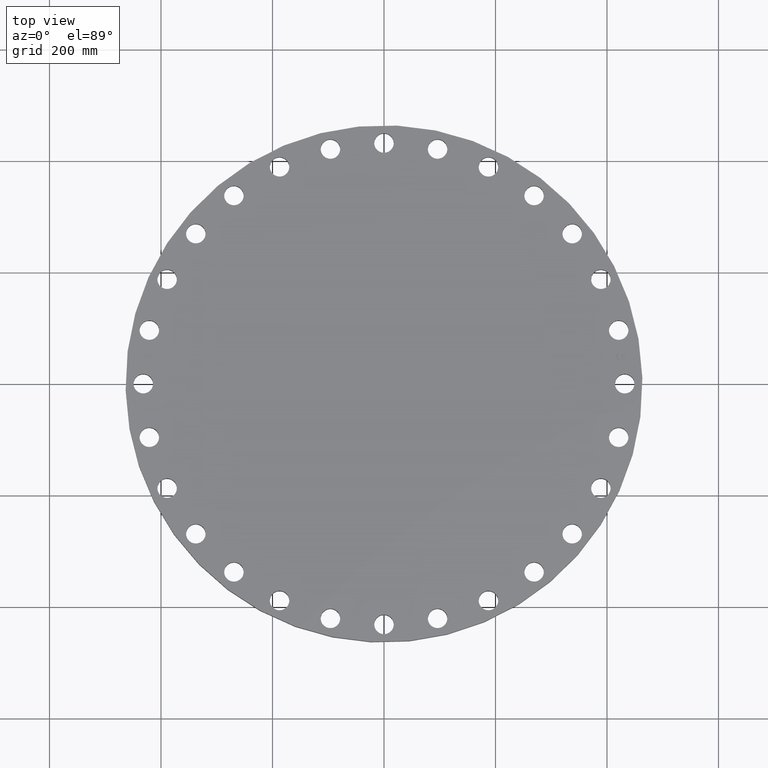
[diagram: clean part render]
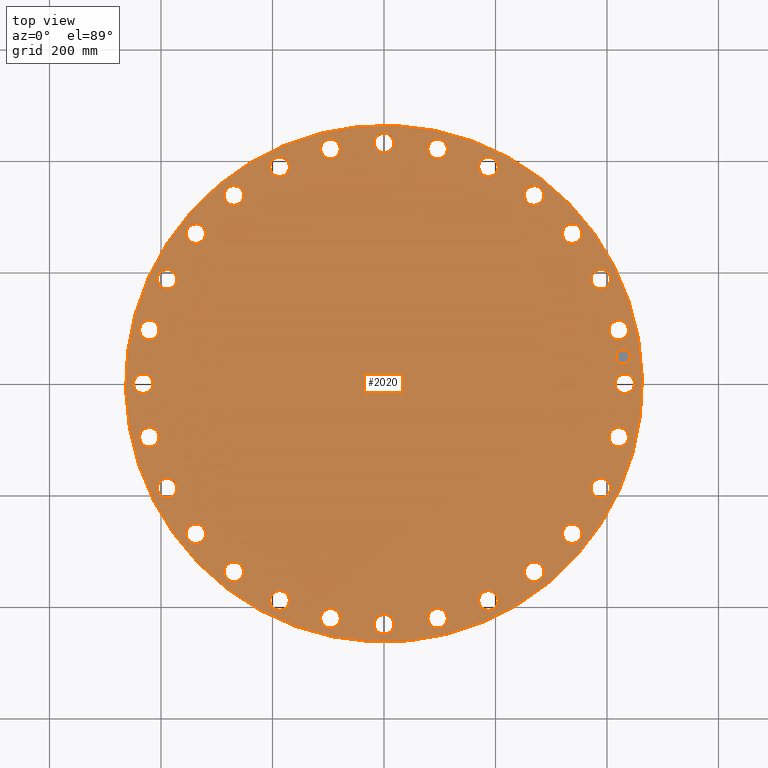
[diagram: same view with one face highlighted and labeled with its STEP entity id]
A machine part, top view. The second image highlights one B-rep face of the part: STEP entity #2020.
In plain terms, the highlighted planar face has unit normal (0, 0, -1).
Its self-contained STEP definition (entity closure, byte-faithful):
#65=AXIS2_PLACEMENT_3D('Circle Axis2P3D',#63,#64,$) ;
#82=AXIS2_PLACEMENT_3D('Circle Axis2P3D',#80,#81,$) ;
#115=AXIS2_PLACEMENT_3D('Circle Axis2P3D',#113,#114,$) ;
#139=AXIS2_PLACEMENT_3D('Circle Axis2P3D',#137,#138,$) ;
#741=AXIS2_PLACEMENT_3D('Circle Axis2P3D',#739,#740,$) ;
#753=AXIS2_PLACEMENT_3D('Circle Axis2P3D',#751,#752,$) ;
#784=AXIS2_PLACEMENT_3D('Circle Axis2P3D',#782,#783,$) ;
#796=AXIS2_PLACEMENT_3D('Circle Axis2P3D',#794,#795,$) ;
#827=AXIS2_PLACEMENT_3D('Circle Axis2P3D',#825,#826,$) ;
#839=AXIS2_PLACEMENT_3D('Circle Axis2P3D',#837,#838,$) ;
#870=AXIS2_PLACEMENT_3D('Circle Axis2P3D',#868,#869,$) ;
#882=AXIS2_PLACEMENT_3D('Circle Axis2P3D',#880,#881,$) ;
#913=AXIS2_PLACEMENT_3D('Circle Axis2P3D',#911,#912,$) ;
#925=AXIS2_PLACEMENT_3D('Circle Axis2P3D',#923,#924,$) ;
#956=AXIS2_PLACEMENT_3D('Circle Axis2P3D',#954,#955,$) ;
#968=AXIS2_PLACEMENT_3D('Circle Axis2P3D',#966,#967,$) ;
#999=AXIS2_PLACEMENT_3D('Circle Axis2P3D',#997,#998,$) ;
#1011=AXIS2_PLACEMENT_3D('Circle Axis2P3D',#1009,#1010,$) ;
#1042=AXIS2_PLACEMENT_3D('Circle Axis2P3D',#1040,#1041,$) ;
#1054=AXIS2_PLACEMENT_3D('Circle Axis2P3D',#1052,#1053,$) ;
#1085=AXIS2_PLACEMENT_3D('Circle Axis2P3D',#1083,#1084,$) ;
#1097=AXIS2_PLACEMENT_3D('Circle Axis2P3D',#1095,#1096,$) ;
#1128=AXIS2_PLACEMENT_3D('Circle Axis2P3D',#1126,#1127,$) ;
#1140=AXIS2_PLACEMENT_3D('Circle Axis2P3D',#1138,#1139,$) ;
#1171=AXIS2_PLACEMENT_3D('Circle Axis2P3D',#1169,#1170,$) ;
#1183=AXIS2_PLACEMENT_3D('Circle Axis2P3D',#1181,#1182,$) ;
#1214=AXIS2_PLACEMENT_3D('Circle Axis2P3D',#1212,#1213,$) ;
#1226=AXIS2_PLACEMENT_3D('Circle Axis2P3D',#1224,#1225,$) ;
#1257=AXIS2_PLACEMENT_3D('Circle Axis2P3D',#1255,#1256,$) ;
#1269=AXIS2_PLACEMENT_3D('Circle Axis2P3D',#1267,#1268,$) ;
#1300=AXIS2_PLACEMENT_3D('Circle Axis2P3D',#1298,#1299,$) ;
#1312=AXIS2_PLACEMENT_3D('Circle Axis2P3D',#1310,#1311,$) ;
#1343=AXIS2_PLACEMENT_3D('Circle Axis2P3D',#1341,#1342,$) ;
#1355=AXIS2_PLACEMENT_3D('Circle Axis2P3D',#1353,#1354,$) ;
#1386=AXIS2_PLACEMENT_3D('Circle Axis2P3D',#1384,#1385,$) ;
#1398=AXIS2_PLACEMENT_3D('Circle Axis2P3D',#1396,#1397,$) ;
#1429=AXIS2_PLACEMENT_3D('Circle Axis2P3D',#1427,#1428,$) ;
#1441=AXIS2_PLACEMENT_3D('Circle Axis2P3D',#1439,#1440,$) ;
#1472=AXIS2_PLACEMENT_3D('Circle Axis2P3D',#1470,#1471,$) ;
#1484=AXIS2_PLACEMENT_3D('Circle Axis2P3D',#1482,#1483,$) ;
#1515=AXIS2_PLACEMENT_3D('Circle Axis2P3D',#1513,#1514,$) ;
#1527=AXIS2_PLACEMENT_3D('Circle Axis2P3D',#1525,#1526,$) ;
#1558=AXIS2_PLACEMENT_3D('Circle Axis2P3D',#1556,#1557,$) ;
#1570=AXIS2_PLACEMENT_3D('Circle Axis2P3D',#1568,#1569,$) ;
#1601=AXIS2_PLACEMENT_3D('Circle Axis2P3D',#1599,#1600,$) ;
#1613=AXIS2_PLACEMENT_3D('Circle Axis2P3D',#1611,#1612,$) ;
#1644=AXIS2_PLACEMENT_3D('Circle Axis2P3D',#1642,#1643,$) ;
#1656=AXIS2_PLACEMENT_3D('Circle Axis2P3D',#1654,#1655,$) ;
#1687=AXIS2_PLACEMENT_3D('Circle Axis2P3D',#1685,#1686,$) ;
#1699=AXIS2_PLACEMENT_3D('Circle Axis2P3D',#1697,#1698,$) ;
#1730=AXIS2_PLACEMENT_3D('Circle Axis2P3D',#1728,#1729,$) ;
#1742=AXIS2_PLACEMENT_3D('Circle Axis2P3D',#1740,#1741,$) ;
#1773=AXIS2_PLACEMENT_3D('Circle Axis2P3D',#1771,#1772,$) ;
#1785=AXIS2_PLACEMENT_3D('Circle Axis2P3D',#1783,#1784,$) ;
#1816=AXIS2_PLACEMENT_3D('Circle Axis2P3D',#1814,#1815,$) ;
#1828=AXIS2_PLACEMENT_3D('Circle Axis2P3D',#1826,#1827,$) ;
#1859=AXIS2_PLACEMENT_3D('Circle Axis2P3D',#1857,#1858,$) ;
#1871=AXIS2_PLACEMENT_3D('Circle Axis2P3D',#1869,#1870,$) ;
#1884=AXIS2_PLACEMENT_3D('Plane Axis2P3D',#1881,#1882,#1883) ;
#2004=AXIS2_PLACEMENT_3D('Circle Axis2P3D',#2002,#2003,$) ;
#2013=AXIS2_PLACEMENT_3D('Circle Axis2P3D',#2011,#2012,$) ;
#46=CARTESIAN_POINT('Vertex',(16.3944680324,0.330803621638,2.75000000001)) ;
#60=CARTESIAN_POINT('Vertex',(17.6055319678,-0.330803621638,2.75000000001)) ;
#63=CARTESIAN_POINT('Axis2P3D Location',(17.0000000001,0.,2.75000000001)) ;
#80=CARTESIAN_POINT('Axis2P3D Location',(17.0000000001,0.,2.75000000001)) ;
#110=CARTESIAN_POINT('Vertex',(-8.74951607956,-16.0158817546,2.75000000001)) ;
#113=CARTESIAN_POINT('Axis2P3D Location',(0.,0.,2.75000000001)) ;
#117=CARTESIAN_POINT('Vertex',(8.74951607956,16.0158817546,2.75000000001)) ;
#137=CARTESIAN_POINT('Axis2P3D Location',(0.,0.,2.75000000001)) ;
#729=CARTESIAN_POINT('Vertex',(-16.057035221,3.32560265409,2.75000000001)) ;
#736=CARTESIAN_POINT('Vertex',(-17.0905137933,4.24010910045,2.75000000001)) ;
#739=CARTESIAN_POINT('Axis2P3D Location',(-16.5737745072,3.78285587727,2.75000000001)) ;
#751=CARTESIAN_POINT('Axis2P3D Location',(-16.5737745072,3.78285587727,2.75000000001)) ;
#772=CARTESIAN_POINT('Vertex',(14.9144356152,-6.81524932624,2.75000000001)) ;
#779=CARTESIAN_POINT('Vertex',(15.7185058936,-7.93679780382,2.75000000001)) ;
#782=CARTESIAN_POINT('Axis2P3D Location',(15.3164707544,-7.37602356503,2.75000000001)) ;
#794=CARTESIAN_POINT('Axis2P3D Location',(15.3164707544,-7.37602356503,2.75000000001)) ;
#815=CARTESIAN_POINT('Vertex',(-14.9144356152,6.81524932624,2.75000000001)) ;
#822=CARTESIAN_POINT('Vertex',(-15.7185058936,7.93679780382,2.75000000001)) ;
#825=CARTESIAN_POINT('Axis2P3D Location',(-15.3164707544,7.37602356503,2.75000000001)) ;
#837=CARTESIAN_POINT('Axis2P3D Location',(-15.3164707544,7.37602356503,2.75000000001)) ;
#858=CARTESIAN_POINT('Vertex',(13.0239639305,-9.96315093917,2.75000000001)) ;
#865=CARTESIAN_POINT('Vertex',(13.5583064735,-11.2355023241,2.75000000001)) ;
#868=CARTESIAN_POINT('Axis2P3D Location',(13.291135202,-10.5993266316,2.75000000001)) ;
#880=CARTESIAN_POINT('Axis2P3D Location',(13.291135202,-10.5993266316,2.75000000001)) ;
#901=CARTESIAN_POINT('Vertex',(-13.0239639305,9.96315093917,2.75000000001)) ;
#908=CARTESIAN_POINT('Vertex',(-13.5583064735,11.2355023241,2.75000000001)) ;
#911=CARTESIAN_POINT('Axis2P3D Location',(-13.291135202,10.5993266316,2.75000000001)) ;
#923=CARTESIAN_POINT('Axis2P3D Location',(-13.291135202,10.5993266316,2.75000000001)) ;
#944=CARTESIAN_POINT('Vertex',(10.480416311,-12.6114585615,2.75000000001)) ;
#951=CARTESIAN_POINT('Vertex',(10.7182369523,-13.9708118425,2.75000000001)) ;
#954=CARTESIAN_POINT('Axis2P3D Location',(10.5993266316,-13.291135202,2.75000000001)) ;
#966=CARTESIAN_POINT('Axis2P3D Location',(10.5993266316,-13.291135202,2.75000000001)) ;
#987=CARTESIAN_POINT('Vertex',(-10.480416311,12.6114585615,2.75000000001)) ;
#994=CARTESIAN_POINT('Vertex',(-10.7182369523,13.9708118425,2.75000000001)) ;
#997=CARTESIAN_POINT('Axis2P3D Location',(-10.5993266316,13.291135202,2.75000000001)) ;
#1009=CARTESIAN_POINT('Axis2P3D Location',(-10.5993266316,13.291135202,2.75000000001)) ;
#1030=CARTESIAN_POINT('Vertex',(7.41133685521,-14.6273749907,2.75000000001)) ;
#1037=CARTESIAN_POINT('Vertex',(7.34071027485,-16.0055665181,2.75000000001)) ;
#1040=CARTESIAN_POINT('Axis2P3D Location',(7.37602356503,-15.3164707544,2.75000000001)) ;
#1052=CARTESIAN_POINT('Axis2P3D Location',(7.37602356503,-15.3164707544,2.75000000001)) ;
#1073=CARTESIAN_POINT('Vertex',(-7.41133685521,14.6273749907,2.75000000001)) ;
#1080=CARTESIAN_POINT('Vertex',(-7.34071027485,16.0055665181,2.75000000001)) ;
#1083=CARTESIAN_POINT('Axis2P3D Location',(-7.37602356503,15.3164707544,2.75000000001)) ;
#1095=CARTESIAN_POINT('Axis2P3D Location',(-7.37602356503,15.3164707544,2.75000000001)) ;
#1116=CARTESIAN_POINT('Vertex',(3.97062202246,-15.9098137593,2.75000000001)) ;
#1123=CARTESIAN_POINT('Vertex',(3.59508973208,-17.237735255,2.75000000001)) ;
#1126=CARTESIAN_POINT('Axis2P3D Location',(3.78285587727,-16.5737745072,2.75000000001)) ;
#1138=CARTESIAN_POINT('Axis2P3D Location',(3.78285587727,-16.5737745072,2.75000000001)) ;
#1159=CARTESIAN_POINT('Vertex',(-3.97062202246,15.9098137593,2.75000000001)) ;
#1166=CARTESIAN_POINT('Vertex',(-3.59508973208,17.237735255,2.75000000001)) ;
#1169=CARTESIAN_POINT('Axis2P3D Location',(-3.78285587727,16.5737745072,2.75000000001)) ;
#1181=CARTESIAN_POINT('Axis2P3D Location',(-3.78285587727,16.5737745072,2.75000000001)) ;
#1202=CARTESIAN_POINT('Vertex',(0.330803621638,-16.3944680324,2.75000000001)) ;
#1209=CARTESIAN_POINT('Vertex',(-0.330803621638,-17.6055319678,2.75000000001)) ;
#1212=CARTESIAN_POINT('Axis2P3D Location',(2.57777818661E-015,-17.0000000001,2.75000000001)) ;
#1224=CARTESIAN_POINT('Axis2P3D Location',(2.57777818661E-015,-17.0000000001,2.75000000001)) ;
#1245=CARTESIAN_POINT('Vertex',(-0.330803621638,16.3944680324,2.75000000001)) ;
#1252=CARTESIAN_POINT('Vertex',(0.330803621638,17.6055319678,2.75000000001)) ;
#1255=CARTESIAN_POINT('Axis2P3D Location',(-8.84919461428E-016,17.0000000001,2.75000000001)) ;
#1267=CARTESIAN_POINT('Axis2P3D Location',(-8.84919461428E-016,17.0000000001,2.75000000001)) ;
#1288=CARTESIAN_POINT('Vertex',(-3.32560265409,-16.057035221,2.75000000001)) ;
#1295=CARTESIAN_POINT('Vertex',(-4.24010910045,-17.0905137933,2.75000000001)) ;
#1298=CARTESIAN_POINT('Axis2P3D Location',(-3.78285587727,-16.5737745072,2.75000000001)) ;
#1310=CARTESIAN_POINT('Axis2P3D Location',(-3.78285587727,-16.5737745072,2.75000000001)) ;
#1331=CARTESIAN_POINT('Vertex',(3.32560265409,16.057035221,2.75000000001)) ;
#1338=CARTESIAN_POINT('Vertex',(4.24010910045,17.0905137933,2.75000000001)) ;
#1341=CARTESIAN_POINT('Axis2P3D Location',(3.78285587727,16.5737745072,2.75000000001)) ;
#1353=CARTESIAN_POINT('Axis2P3D Location',(3.78285587727,16.5737745072,2.75000000001)) ;
#1374=CARTESIAN_POINT('Vertex',(-6.81524932624,-14.9144356152,2.75000000001)) ;
#1381=CARTESIAN_POINT('Vertex',(-7.93679780382,-15.7185058936,2.75000000001)) ;
#1384=CARTESIAN_POINT('Axis2P3D Location',(-7.37602356503,-15.3164707544,2.75000000001)) ;
#1396=CARTESIAN_POINT('Axis2P3D Location',(-7.37602356503,-15.3164707544,2.75000000001)) ;
#1417=CARTESIAN_POINT('Vertex',(6.81524932624,14.9144356152,2.75000000001)) ;
#1424=CARTESIAN_POINT('Vertex',(7.93679780382,15.7185058936,2.75000000001)) ;
#1427=CARTESIAN_POINT('Axis2P3D Location',(7.37602356503,15.3164707544,2.75000000001)) ;
#1439=CARTESIAN_POINT('Axis2P3D Location',(7.37602356503,15.3164707544,2.75000000001)) ;
#1460=CARTESIAN_POINT('Vertex',(-9.96315093917,-13.0239639305,2.75000000001)) ;
#1467=CARTESIAN_POINT('Vertex',(-11.2355023241,-13.5583064735,2.75000000001)) ;
#1470=CARTESIAN_POINT('Axis2P3D Location',(-10.5993266316,-13.291135202,2.75000000001)) ;
#1482=CARTESIAN_POINT('Axis2P3D Location',(-10.5993266316,-13.291135202,2.75000000001)) ;
#1503=CARTESIAN_POINT('Vertex',(9.96315093917,13.0239639305,2.75000000001)) ;
#1510=CARTESIAN_POINT('Vertex',(11.2355023241,13.5583064735,2.75000000001)) ;
#1513=CARTESIAN_POINT('Axis2P3D Location',(10.5993266316,13.291135202,2.75000000001)) ;
#1525=CARTESIAN_POINT('Axis2P3D Location',(10.5993266316,13.291135202,2.75000000001)) ;
#1546=CARTESIAN_POINT('Vertex',(-12.6114585615,-10.480416311,2.75000000001)) ;
#1553=CARTESIAN_POINT('Vertex',(-13.9708118425,-10.7182369523,2.75000000001)) ;
#1556=CARTESIAN_POINT('Axis2P3D Location',(-13.291135202,-10.5993266316,2.75000000001)) ;
#1568=CARTESIAN_POINT('Axis2P3D Location',(-13.291135202,-10.5993266316,2.75000000001)) ;
#1589=CARTESIAN_POINT('Vertex',(12.6114585615,10.480416311,2.75000000001)) ;
#1596=CARTESIAN_POINT('Vertex',(13.9708118425,10.7182369523,2.75000000001)) ;
#1599=CARTESIAN_POINT('Axis2P3D Location',(13.291135202,10.5993266316,2.75000000001)) ;
#1611=CARTESIAN_POINT('Axis2P3D Location',(13.291135202,10.5993266316,2.75000000001)) ;
#1632=CARTESIAN_POINT('Vertex',(-14.6273749907,-7.41133685521,2.75000000001)) ;
#1639=CARTESIAN_POINT('Vertex',(-16.0055665181,-7.34071027485,2.75000000001)) ;
#1642=CARTESIAN_POINT('Axis2P3D Location',(-15.3164707544,-7.37602356503,2.75000000001)) ;
#1654=CARTESIAN_POINT('Axis2P3D Location',(-15.3164707544,-7.37602356503,2.75000000001)) ;
#1675=CARTESIAN_POINT('Vertex',(14.6273749907,7.41133685521,2.75000000001)) ;
#1682=CARTESIAN_POINT('Vertex',(16.0055665181,7.34071027485,2.75000000001)) ;
#1685=CARTESIAN_POINT('Axis2P3D Location',(15.3164707544,7.37602356503,2.75000000001)) ;
#1697=CARTESIAN_POINT('Axis2P3D Location',(15.3164707544,7.37602356503,2.75000000001)) ;
#1718=CARTESIAN_POINT('Vertex',(-15.9098137593,-3.97062202246,2.75000000001)) ;
#1725=CARTESIAN_POINT('Vertex',(-17.237735255,-3.59508973208,2.75000000001)) ;
#1728=CARTESIAN_POINT('Axis2P3D Location',(-16.5737745072,-3.78285587727,2.75000000001)) ;
#1740=CARTESIAN_POINT('Axis2P3D Location',(-16.5737745072,-3.78285587727,2.75000000001)) ;
#1761=CARTESIAN_POINT('Vertex',(15.9098137593,3.97062202246,2.75000000001)) ;
#1768=CARTESIAN_POINT('Vertex',(17.237735255,3.59508973208,2.75000000001)) ;
#1771=CARTESIAN_POINT('Axis2P3D Location',(16.5737745072,3.78285587727,2.75000000001)) ;
#1783=CARTESIAN_POINT('Axis2P3D Location',(16.5737745072,3.78285587727,2.75000000001)) ;
#1804=CARTESIAN_POINT('Vertex',(-16.3944680324,-0.330803621638,2.75000000001)) ;
#1811=CARTESIAN_POINT('Vertex',(-17.6055319678,0.330803621638,2.75000000001)) ;
#1814=CARTESIAN_POINT('Axis2P3D Location',(-17.0000000001,-9.63141612604E-015,2.75000000001)) ;
#1826=CARTESIAN_POINT('Axis2P3D Location',(-17.0000000001,-9.63141612604E-015,2.75000000001)) ;
#1847=CARTESIAN_POINT('Vertex',(16.057035221,-3.32560265409,2.75000000001)) ;
#1854=CARTESIAN_POINT('Vertex',(17.0905137933,-4.24010910045,2.75000000001)) ;
#1857=CARTESIAN_POINT('Axis2P3D Location',(16.5737745072,-3.78285587727,2.75000000001)) ;
#1869=CARTESIAN_POINT('Axis2P3D Location',(16.5737745072,-3.78285587727,2.75000000001)) ;
#1881=CARTESIAN_POINT('Axis2P3D Location',(0.,18.2500000001,2.75000000001)) ;
#2002=CARTESIAN_POINT('Axis2P3D Location',(16.8931075683,1.90339609376,2.75000000001)) ;
#2006=CARTESIAN_POINT('Vertex',(16.8371253302,2.40025219871,2.75000000001)) ;
#2008=CARTESIAN_POINT('Vertex',(16.9490898063,1.40653998882,2.75000000001)) ;
#2011=CARTESIAN_POINT('Axis2P3D Location',(16.8931075683,1.90339609376,2.75000000001)) ;
#64=DIRECTION('Axis2P3D Direction',(0.,-0.,-0.0393700787402)) ;
#81=DIRECTION('Axis2P3D Direction',(0.,-0.,-0.0393700787402)) ;
#114=DIRECTION('Axis2P3D Direction',(0.,0.,-0.0393700787402)) ;
#138=DIRECTION('Axis2P3D Direction',(0.,0.,-0.0393700787402)) ;
#740=DIRECTION('Axis2P3D Direction',(0.,0.,-0.0393700787402)) ;
#752=DIRECTION('Axis2P3D Direction',(0.,0.,-0.0393700787402)) ;
#783=DIRECTION('Axis2P3D Direction',(0.,-0.,-0.0393700787402)) ;
#795=DIRECTION('Axis2P3D Direction',(0.,-0.,-0.0393700787402)) ;
#826=DIRECTION('Axis2P3D Direction',(0.,0.,-0.0393700787402)) ;
#838=DIRECTION('Axis2P3D Direction',(0.,0.,-0.0393700787402)) ;
#869=DIRECTION('Axis2P3D Direction',(0.,-0.,-0.0393700787402)) ;
#881=DIRECTION('Axis2P3D Direction',(0.,-0.,-0.0393700787402)) ;
#912=DIRECTION('Axis2P3D Direction',(0.,0.,-0.0393700787402)) ;
#924=DIRECTION('Axis2P3D Direction',(0.,0.,-0.0393700787402)) ;
#955=DIRECTION('Axis2P3D Direction',(0.,-0.,-0.0393700787402)) ;
#967=DIRECTION('Axis2P3D Direction',(0.,-0.,-0.0393700787402)) ;
#998=DIRECTION('Axis2P3D Direction',(0.,0.,-0.0393700787402)) ;
#1010=DIRECTION('Axis2P3D Direction',(0.,0.,-0.0393700787402)) ;
#1041=DIRECTION('Axis2P3D Direction',(0.,-0.,-0.0393700787402)) ;
#1053=DIRECTION('Axis2P3D Direction',(0.,-0.,-0.0393700787402)) ;
#1084=DIRECTION('Axis2P3D Direction',(0.,0.,-0.0393700787402)) ;
#1096=DIRECTION('Axis2P3D Direction',(0.,0.,-0.0393700787402)) ;
#1127=DIRECTION('Axis2P3D Direction',(0.,-0.,-0.0393700787402)) ;
#1139=DIRECTION('Axis2P3D Direction',(0.,-0.,-0.0393700787402)) ;
#1170=DIRECTION('Axis2P3D Direction',(0.,0.,-0.0393700787402)) ;
#1182=DIRECTION('Axis2P3D Direction',(0.,0.,-0.0393700787402)) ;
#1213=DIRECTION('Axis2P3D Direction',(0.,-0.,-0.0393700787402)) ;
#1225=DIRECTION('Axis2P3D Direction',(0.,-0.,-0.0393700787402)) ;
#1256=DIRECTION('Axis2P3D Direction',(0.,0.,-0.0393700787402)) ;
#1268=DIRECTION('Axis2P3D Direction',(0.,0.,-0.0393700787402)) ;
#1299=DIRECTION('Axis2P3D Direction',(-0.,0.,-0.0393700787402)) ;
#1311=DIRECTION('Axis2P3D Direction',(-0.,0.,-0.0393700787402)) ;
#1342=DIRECTION('Axis2P3D Direction',(0.,0.,-0.0393700787402)) ;
#1354=DIRECTION('Axis2P3D Direction',(0.,0.,-0.0393700787402)) ;
#1385=DIRECTION('Axis2P3D Direction',(-0.,0.,-0.0393700787402)) ;
#1397=DIRECTION('Axis2P3D Direction',(-0.,0.,-0.0393700787402)) ;
#1428=DIRECTION('Axis2P3D Direction',(0.,0.,-0.0393700787402)) ;
#1440=DIRECTION('Axis2P3D Direction',(0.,0.,-0.0393700787402)) ;
#1471=DIRECTION('Axis2P3D Direction',(-0.,0.,-0.0393700787402)) ;
#1483=DIRECTION('Axis2P3D Direction',(-0.,0.,-0.0393700787402)) ;
#1514=DIRECTION('Axis2P3D Direction',(0.,0.,-0.0393700787402)) ;
#1526=DIRECTION('Axis2P3D Direction',(0.,0.,-0.0393700787402)) ;
#1557=DIRECTION('Axis2P3D Direction',(-0.,0.,-0.0393700787402)) ;
#1569=DIRECTION('Axis2P3D Direction',(-0.,0.,-0.0393700787402)) ;
#1600=DIRECTION('Axis2P3D Direction',(0.,0.,-0.0393700787402)) ;
#1612=DIRECTION('Axis2P3D Direction',(0.,0.,-0.0393700787402)) ;
#1643=DIRECTION('Axis2P3D Direction',(-0.,0.,-0.0393700787402)) ;
#1655=DIRECTION('Axis2P3D Direction',(-0.,0.,-0.0393700787402)) ;
#1686=DIRECTION('Axis2P3D Direction',(0.,0.,-0.0393700787402)) ;
#1698=DIRECTION('Axis2P3D Direction',(0.,0.,-0.0393700787402)) ;
#1729=DIRECTION('Axis2P3D Direction',(-0.,0.,-0.0393700787402)) ;
#1741=DIRECTION('Axis2P3D Direction',(-0.,0.,-0.0393700787402)) ;
#1772=DIRECTION('Axis2P3D Direction',(0.,0.,-0.0393700787402)) ;
#1784=DIRECTION('Axis2P3D Direction',(0.,0.,-0.0393700787402)) ;
#1815=DIRECTION('Axis2P3D Direction',(-0.,0.,-0.0393700787402)) ;
#1827=DIRECTION('Axis2P3D Direction',(-0.,0.,-0.0393700787402)) ;
#1858=DIRECTION('Axis2P3D Direction',(0.,-0.,-0.0393700787402)) ;
#1870=DIRECTION('Axis2P3D Direction',(0.,-0.,-0.0393700787402)) ;
#1882=DIRECTION('Axis2P3D Direction',(0.,0.,-0.0393700787402)) ;
#1883=DIRECTION('Axis2P3D XDirection',(0.0393700787402,0.,0.)) ;
#2003=DIRECTION('Axis2P3D Direction',(0.,0.,-0.0393700787402)) ;
#2012=DIRECTION('Axis2P3D Direction',(0.,0.,-0.0393700787402)) ;
#1887=ORIENTED_EDGE('',*,*,#141,.F.) ;
#1888=ORIENTED_EDGE('',*,*,#119,.F.) ;
#1891=ORIENTED_EDGE('',*,*,#67,.T.) ;
#1892=ORIENTED_EDGE('',*,*,#84,.T.) ;
#1895=ORIENTED_EDGE('',*,*,#1873,.T.) ;
#1896=ORIENTED_EDGE('',*,*,#1861,.T.) ;
#1899=ORIENTED_EDGE('',*,*,#798,.T.) ;
#1900=ORIENTED_EDGE('',*,*,#786,.T.) ;
#1903=ORIENTED_EDGE('',*,*,#884,.T.) ;
#1904=ORIENTED_EDGE('',*,*,#872,.T.) ;
#1907=ORIENTED_EDGE('',*,*,#970,.T.) ;
#1908=ORIENTED_EDGE('',*,*,#958,.T.) ;
#1911=ORIENTED_EDGE('',*,*,#1056,.T.) ;
#1912=ORIENTED_EDGE('',*,*,#1044,.T.) ;
#1915=ORIENTED_EDGE('',*,*,#1142,.T.) ;
#1916=ORIENTED_EDGE('',*,*,#1130,.T.) ;
#1919=ORIENTED_EDGE('',*,*,#1228,.T.) ;
#1920=ORIENTED_EDGE('',*,*,#1216,.T.) ;
#1923=ORIENTED_EDGE('',*,*,#1314,.T.) ;
#1924=ORIENTED_EDGE('',*,*,#1302,.T.) ;
#1927=ORIENTED_EDGE('',*,*,#1400,.T.) ;
#1928=ORIENTED_EDGE('',*,*,#1388,.T.) ;
#1931=ORIENTED_EDGE('',*,*,#1486,.T.) ;
#1932=ORIENTED_EDGE('',*,*,#1474,.T.) ;
#1935=ORIENTED_EDGE('',*,*,#1572,.T.) ;
#1936=ORIENTED_EDGE('',*,*,#1560,.T.) ;
#1939=ORIENTED_EDGE('',*,*,#1658,.T.) ;
#1940=ORIENTED_EDGE('',*,*,#1646,.T.) ;
#1943=ORIENTED_EDGE('',*,*,#1744,.T.) ;
#1944=ORIENTED_EDGE('',*,*,#1732,.T.) ;
#1947=ORIENTED_EDGE('',*,*,#1830,.T.) ;
#1948=ORIENTED_EDGE('',*,*,#1818,.T.) ;
#1951=ORIENTED_EDGE('',*,*,#755,.T.) ;
#1952=ORIENTED_EDGE('',*,*,#743,.T.) ;
#1955=ORIENTED_EDGE('',*,*,#841,.T.) ;
#1956=ORIENTED_EDGE('',*,*,#829,.T.) ;
#1959=ORIENTED_EDGE('',*,*,#927,.T.) ;
#1960=ORIENTED_EDGE('',*,*,#915,.T.) ;
#1963=ORIENTED_EDGE('',*,*,#1013,.T.) ;
#1964=ORIENTED_EDGE('',*,*,#1001,.T.) ;
#1967=ORIENTED_EDGE('',*,*,#1099,.T.) ;
#1968=ORIENTED_EDGE('',*,*,#1087,.T.) ;
#1971=ORIENTED_EDGE('',*,*,#1185,.T.) ;
#1972=ORIENTED_EDGE('',*,*,#1173,.T.) ;
#1975=ORIENTED_EDGE('',*,*,#1271,.T.) ;
#1976=ORIENTED_EDGE('',*,*,#1259,.T.) ;
#1979=ORIENTED_EDGE('',*,*,#1357,.T.) ;
#1980=ORIENTED_EDGE('',*,*,#1345,.T.) ;
#1983=ORIENTED_EDGE('',*,*,#1443,.T.) ;
#1984=ORIENTED_EDGE('',*,*,#1431,.T.) ;
#1987=ORIENTED_EDGE('',*,*,#1529,.T.) ;
#1988=ORIENTED_EDGE('',*,*,#1517,.T.) ;
#1991=ORIENTED_EDGE('',*,*,#1615,.T.) ;
#1992=ORIENTED_EDGE('',*,*,#1603,.T.) ;
#1995=ORIENTED_EDGE('',*,*,#1701,.T.) ;
#1996=ORIENTED_EDGE('',*,*,#1689,.T.) ;
#1999=ORIENTED_EDGE('',*,*,#1787,.T.) ;
#2000=ORIENTED_EDGE('',*,*,#1775,.T.) ;
#2017=ORIENTED_EDGE('',*,*,#2010,.T.) ;
#2018=ORIENTED_EDGE('',*,*,#2015,.T.) ;
#1893=FACE_BOUND('',#1890,.T.) ;
#1897=FACE_BOUND('',#1894,.T.) ;
#1901=FACE_BOUND('',#1898,.T.) ;
#1905=FACE_BOUND('',#1902,.T.) ;
#1909=FACE_BOUND('',#1906,.T.) ;
#1913=FACE_BOUND('',#1910,.T.) ;
#1917=FACE_BOUND('',#1914,.T.) ;
#1921=FACE_BOUND('',#1918,.T.) ;
#1925=FACE_BOUND('',#1922,.T.) ;
#1929=FACE_BOUND('',#1926,.T.) ;
#1933=FACE_BOUND('',#1930,.T.) ;
#1937=FACE_BOUND('',#1934,.T.) ;
#1941=FACE_BOUND('',#1938,.T.) ;
#1945=FACE_BOUND('',#1942,.T.) ;
#1949=FACE_BOUND('',#1946,.T.) ;
#1953=FACE_BOUND('',#1950,.T.) ;
#1957=FACE_BOUND('',#1954,.T.) ;
#1961=FACE_BOUND('',#1958,.T.) ;
#1965=FACE_BOUND('',#1962,.T.) ;
#1969=FACE_BOUND('',#1966,.T.) ;
#1973=FACE_BOUND('',#1970,.T.) ;
#1977=FACE_BOUND('',#1974,.T.) ;
#1981=FACE_BOUND('',#1978,.T.) ;
#1985=FACE_BOUND('',#1982,.T.) ;
#1989=FACE_BOUND('',#1986,.T.) ;
#1993=FACE_BOUND('',#1990,.T.) ;
#1997=FACE_BOUND('',#1994,.T.) ;
#2001=FACE_BOUND('',#1998,.T.) ;
#2019=FACE_BOUND('',#2016,.T.) ;
#2020=ADVANCED_FACE('PartBody',(#1889,#1893,#1897,#1901,#1905,#1909,#1913,#1917,#1921,#1925,#1929,#1933,#1937,#1941,#1945,#1949,#1953,#1957,#1961,#1965,#1969,#1973,#1977,#1981,#1985,#1989,#1993,#1997,#2001,#2019),#1885,.F.) ;
#66=CIRCLE('generated circle',#65,0.690000000003) ;
#83=CIRCLE('generated circle',#82,0.690000000003) ;
#116=CIRCLE('generated circle',#115,18.2500000001) ;
#140=CIRCLE('generated circle',#139,18.2500000001) ;
#742=CIRCLE('generated circle',#741,0.690000000003) ;
#754=CIRCLE('generated circle',#753,0.690000000003) ;
#785=CIRCLE('generated circle',#784,0.690000000003) ;
#797=CIRCLE('generated circle',#796,0.690000000003) ;
#828=CIRCLE('generated circle',#827,0.690000000003) ;
#840=CIRCLE('generated circle',#839,0.690000000003) ;
#871=CIRCLE('generated circle',#870,0.690000000003) ;
#883=CIRCLE('generated circle',#882,0.690000000003) ;
#914=CIRCLE('generated circle',#913,0.690000000003) ;
#926=CIRCLE('generated circle',#925,0.690000000003) ;
#957=CIRCLE('generated circle',#956,0.690000000003) ;
#969=CIRCLE('generated circle',#968,0.690000000003) ;
#1000=CIRCLE('generated circle',#999,0.690000000003) ;
#1012=CIRCLE('generated circle',#1011,0.690000000003) ;
#1043=CIRCLE('generated circle',#1042,0.690000000003) ;
#1055=CIRCLE('generated circle',#1054,0.690000000003) ;
#1086=CIRCLE('generated circle',#1085,0.690000000003) ;
#1098=CIRCLE('generated circle',#1097,0.690000000003) ;
#1129=CIRCLE('generated circle',#1128,0.690000000003) ;
#1141=CIRCLE('generated circle',#1140,0.690000000003) ;
#1172=CIRCLE('generated circle',#1171,0.690000000003) ;
#1184=CIRCLE('generated circle',#1183,0.690000000003) ;
#1215=CIRCLE('generated circle',#1214,0.690000000003) ;
#1227=CIRCLE('generated circle',#1226,0.690000000003) ;
#1258=CIRCLE('generated circle',#1257,0.690000000003) ;
#1270=CIRCLE('generated circle',#1269,0.690000000003) ;
#1301=CIRCLE('generated circle',#1300,0.690000000003) ;
#1313=CIRCLE('generated circle',#1312,0.690000000003) ;
#1344=CIRCLE('generated circle',#1343,0.690000000003) ;
#1356=CIRCLE('generated circle',#1355,0.690000000003) ;
#1387=CIRCLE('generated circle',#1386,0.690000000003) ;
#1399=CIRCLE('generated circle',#1398,0.690000000003) ;
#1430=CIRCLE('generated circle',#1429,0.690000000003) ;
#1442=CIRCLE('generated circle',#1441,0.690000000003) ;
#1473=CIRCLE('generated circle',#1472,0.690000000003) ;
#1485=CIRCLE('generated circle',#1484,0.690000000003) ;
#1516=CIRCLE('generated circle',#1515,0.690000000003) ;
#1528=CIRCLE('generated circle',#1527,0.690000000003) ;
#1559=CIRCLE('generated circle',#1558,0.690000000003) ;
#1571=CIRCLE('generated circle',#1570,0.690000000003) ;
#1602=CIRCLE('generated circle',#1601,0.690000000003) ;
#1614=CIRCLE('generated circle',#1613,0.690000000003) ;
#1645=CIRCLE('generated circle',#1644,0.690000000003) ;
#1657=CIRCLE('generated circle',#1656,0.690000000003) ;
#1688=CIRCLE('generated circle',#1687,0.690000000003) ;
#1700=CIRCLE('generated circle',#1699,0.690000000003) ;
#1731=CIRCLE('generated circle',#1730,0.690000000003) ;
#1743=CIRCLE('generated circle',#1742,0.690000000003) ;
#1774=CIRCLE('generated circle',#1773,0.690000000003) ;
#1786=CIRCLE('generated circle',#1785,0.690000000003) ;
#1817=CIRCLE('generated circle',#1816,0.690000000003) ;
#1829=CIRCLE('generated circle',#1828,0.690000000003) ;
#1860=CIRCLE('generated circle',#1859,0.690000000003) ;
#1872=CIRCLE('generated circle',#1871,0.690000000003) ;
#2005=CIRCLE('generated circle',#2004,0.500000000002) ;
#2014=CIRCLE('generated circle',#2013,0.500000000002) ;
#67=EDGE_CURVE('',#47,#61,#66,.T.) ;
#84=EDGE_CURVE('',#61,#47,#83,.T.) ;
#119=EDGE_CURVE('',#111,#118,#116,.T.) ;
#141=EDGE_CURVE('',#118,#111,#140,.T.) ;
#743=EDGE_CURVE('',#730,#737,#742,.T.) ;
#755=EDGE_CURVE('',#737,#730,#754,.T.) ;
#786=EDGE_CURVE('',#773,#780,#785,.T.) ;
#798=EDGE_CURVE('',#780,#773,#797,.T.) ;
#829=EDGE_CURVE('',#816,#823,#828,.T.) ;
#841=EDGE_CURVE('',#823,#816,#840,.T.) ;
#872=EDGE_CURVE('',#859,#866,#871,.T.) ;
#884=EDGE_CURVE('',#866,#859,#883,.T.) ;
#915=EDGE_CURVE('',#902,#909,#914,.T.) ;
#927=EDGE_CURVE('',#909,#902,#926,.T.) ;
#958=EDGE_CURVE('',#945,#952,#957,.T.) ;
#970=EDGE_CURVE('',#952,#945,#969,.T.) ;
#1001=EDGE_CURVE('',#988,#995,#1000,.T.) ;
#1013=EDGE_CURVE('',#995,#988,#1012,.T.) ;
#1044=EDGE_CURVE('',#1031,#1038,#1043,.T.) ;
#1056=EDGE_CURVE('',#1038,#1031,#1055,.T.) ;
#1087=EDGE_CURVE('',#1074,#1081,#1086,.T.) ;
#1099=EDGE_CURVE('',#1081,#1074,#1098,.T.) ;
#1130=EDGE_CURVE('',#1117,#1124,#1129,.T.) ;
#1142=EDGE_CURVE('',#1124,#1117,#1141,.T.) ;
#1173=EDGE_CURVE('',#1160,#1167,#1172,.T.) ;
#1185=EDGE_CURVE('',#1167,#1160,#1184,.T.) ;
#1216=EDGE_CURVE('',#1203,#1210,#1215,.T.) ;
#1228=EDGE_CURVE('',#1210,#1203,#1227,.T.) ;
#1259=EDGE_CURVE('',#1246,#1253,#1258,.T.) ;
#1271=EDGE_CURVE('',#1253,#1246,#1270,.T.) ;
#1302=EDGE_CURVE('',#1289,#1296,#1301,.T.) ;
#1314=EDGE_CURVE('',#1296,#1289,#1313,.T.) ;
#1345=EDGE_CURVE('',#1332,#1339,#1344,.T.) ;
#1357=EDGE_CURVE('',#1339,#1332,#1356,.T.) ;
#1388=EDGE_CURVE('',#1375,#1382,#1387,.T.) ;
#1400=EDGE_CURVE('',#1382,#1375,#1399,.T.) ;
#1431=EDGE_CURVE('',#1418,#1425,#1430,.T.) ;
#1443=EDGE_CURVE('',#1425,#1418,#1442,.T.) ;
#1474=EDGE_CURVE('',#1461,#1468,#1473,.T.) ;
#1486=EDGE_CURVE('',#1468,#1461,#1485,.T.) ;
#1517=EDGE_CURVE('',#1504,#1511,#1516,.T.) ;
#1529=EDGE_CURVE('',#1511,#1504,#1528,.T.) ;
#1560=EDGE_CURVE('',#1547,#1554,#1559,.T.) ;
#1572=EDGE_CURVE('',#1554,#1547,#1571,.T.) ;
#1603=EDGE_CURVE('',#1590,#1597,#1602,.T.) ;
#1615=EDGE_CURVE('',#1597,#1590,#1614,.T.) ;
#1646=EDGE_CURVE('',#1633,#1640,#1645,.T.) ;
#1658=EDGE_CURVE('',#1640,#1633,#1657,.T.) ;
#1689=EDGE_CURVE('',#1676,#1683,#1688,.T.) ;
#1701=EDGE_CURVE('',#1683,#1676,#1700,.T.) ;
#1732=EDGE_CURVE('',#1719,#1726,#1731,.T.) ;
#1744=EDGE_CURVE('',#1726,#1719,#1743,.T.) ;
#1775=EDGE_CURVE('',#1762,#1769,#1774,.T.) ;
#1787=EDGE_CURVE('',#1769,#1762,#1786,.T.) ;
#1818=EDGE_CURVE('',#1805,#1812,#1817,.T.) ;
#1830=EDGE_CURVE('',#1812,#1805,#1829,.T.) ;
#1861=EDGE_CURVE('',#1848,#1855,#1860,.T.) ;
#1873=EDGE_CURVE('',#1855,#1848,#1872,.T.) ;
#2010=EDGE_CURVE('',#2007,#2009,#2005,.T.) ;
#2015=EDGE_CURVE('',#2009,#2007,#2014,.T.) ;
#1886=EDGE_LOOP('',(#1887,#1888)) ;
#1890=EDGE_LOOP('',(#1891,#1892)) ;
#1894=EDGE_LOOP('',(#1895,#1896)) ;
#1898=EDGE_LOOP('',(#1899,#1900)) ;
#1902=EDGE_LOOP('',(#1903,#1904)) ;
#1906=EDGE_LOOP('',(#1907,#1908)) ;
#1910=EDGE_LOOP('',(#1911,#1912)) ;
#1914=EDGE_LOOP('',(#1915,#1916)) ;
#1918=EDGE_LOOP('',(#1919,#1920)) ;
#1922=EDGE_LOOP('',(#1923,#1924)) ;
#1926=EDGE_LOOP('',(#1927,#1928)) ;
#1930=EDGE_LOOP('',(#1931,#1932)) ;
#1934=EDGE_LOOP('',(#1935,#1936)) ;
#1938=EDGE_LOOP('',(#1939,#1940)) ;
#1942=EDGE_LOOP('',(#1943,#1944)) ;
#1946=EDGE_LOOP('',(#1947,#1948)) ;
#1950=EDGE_LOOP('',(#1951,#1952)) ;
#1954=EDGE_LOOP('',(#1955,#1956)) ;
#1958=EDGE_LOOP('',(#1959,#1960)) ;
#1962=EDGE_LOOP('',(#1963,#1964)) ;
#1966=EDGE_LOOP('',(#1967,#1968)) ;
#1970=EDGE_LOOP('',(#1971,#1972)) ;
#1974=EDGE_LOOP('',(#1975,#1976)) ;
#1978=EDGE_LOOP('',(#1979,#1980)) ;
#1982=EDGE_LOOP('',(#1983,#1984)) ;
#1986=EDGE_LOOP('',(#1987,#1988)) ;
#1990=EDGE_LOOP('',(#1991,#1992)) ;
#1994=EDGE_LOOP('',(#1995,#1996)) ;
#1998=EDGE_LOOP('',(#1999,#2000)) ;
#2016=EDGE_LOOP('',(#2017,#2018)) ;
#1889=FACE_OUTER_BOUND('',#1886,.T.) ;
#1885=PLANE('',#1884) ;
#47=VERTEX_POINT('',#46) ;
#61=VERTEX_POINT('',#60) ;
#111=VERTEX_POINT('',#110) ;
#118=VERTEX_POINT('',#117) ;
#730=VERTEX_POINT('',#729) ;
#737=VERTEX_POINT('',#736) ;
#773=VERTEX_POINT('',#772) ;
#780=VERTEX_POINT('',#779) ;
#816=VERTEX_POINT('',#815) ;
#823=VERTEX_POINT('',#822) ;
#859=VERTEX_POINT('',#858) ;
#866=VERTEX_POINT('',#865) ;
#902=VERTEX_POINT('',#901) ;
#909=VERTEX_POINT('',#908) ;
#945=VERTEX_POINT('',#944) ;
#952=VERTEX_POINT('',#951) ;
#988=VERTEX_POINT('',#987) ;
#995=VERTEX_POINT('',#994) ;
#1031=VERTEX_POINT('',#1030) ;
#1038=VERTEX_POINT('',#1037) ;
#1074=VERTEX_POINT('',#1073) ;
#1081=VERTEX_POINT('',#1080) ;
#1117=VERTEX_POINT('',#1116) ;
#1124=VERTEX_POINT('',#1123) ;
#1160=VERTEX_POINT('',#1159) ;
#1167=VERTEX_POINT('',#1166) ;
#1203=VERTEX_POINT('',#1202) ;
#1210=VERTEX_POINT('',#1209) ;
#1246=VERTEX_POINT('',#1245) ;
#1253=VERTEX_POINT('',#1252) ;
#1289=VERTEX_POINT('',#1288) ;
#1296=VERTEX_POINT('',#1295) ;
#1332=VERTEX_POINT('',#1331) ;
#1339=VERTEX_POINT('',#1338) ;
#1375=VERTEX_POINT('',#1374) ;
#1382=VERTEX_POINT('',#1381) ;
#1418=VERTEX_POINT('',#1417) ;
#1425=VERTEX_POINT('',#1424) ;
#1461=VERTEX_POINT('',#1460) ;
#1468=VERTEX_POINT('',#1467) ;
#1504=VERTEX_POINT('',#1503) ;
#1511=VERTEX_POINT('',#1510) ;
#1547=VERTEX_POINT('',#1546) ;
#1554=VERTEX_POINT('',#1553) ;
#1590=VERTEX_POINT('',#1589) ;
#1597=VERTEX_POINT('',#1596) ;
#1633=VERTEX_POINT('',#1632) ;
#1640=VERTEX_POINT('',#1639) ;
#1676=VERTEX_POINT('',#1675) ;
#1683=VERTEX_POINT('',#1682) ;
#1719=VERTEX_POINT('',#1718) ;
#1726=VERTEX_POINT('',#1725) ;
#1762=VERTEX_POINT('',#1761) ;
#1769=VERTEX_POINT('',#1768) ;
#1805=VERTEX_POINT('',#1804) ;
#1812=VERTEX_POINT('',#1811) ;
#1848=VERTEX_POINT('',#1847) ;
#1855=VERTEX_POINT('',#1854) ;
#2007=VERTEX_POINT('',#2006) ;
#2009=VERTEX_POINT('',#2008) ;